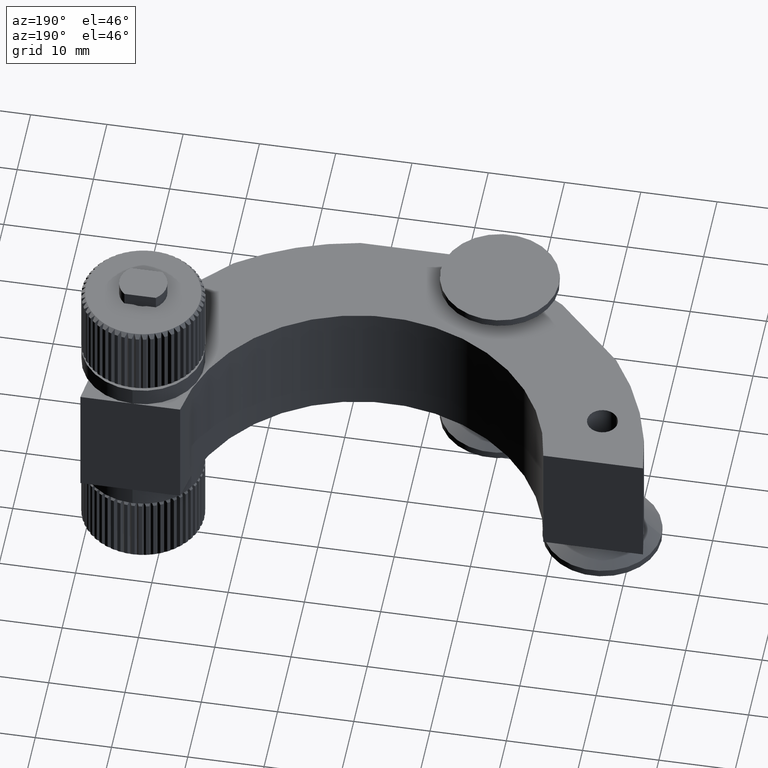
[diagram: clean part render]
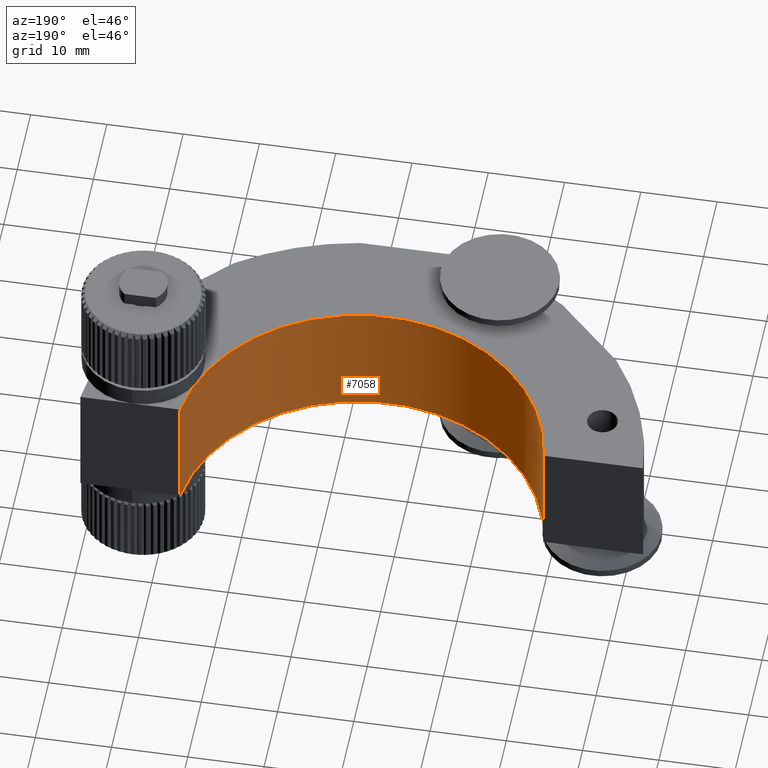
[diagram: same view with one face highlighted and labeled with its STEP entity id]
A machine part, auxiliary view. The second image highlights one B-rep face of the part: STEP entity #7058.
In plain terms, the highlighted cylindrical surface (partial cylindrical patch) has radius 24 mm, axis along (-0, -0, -1).
Its self-contained STEP definition (entity closure, byte-faithful):
#134 = ORIENTED_EDGE ( 'NONE', *, *, #10981, .T. ) ;
#1564 = LINE ( 'NONE', #3931, #11962 ) ;
#2597 = FACE_OUTER_BOUND ( 'NONE', #11239, .T. ) ;
#3108 = EDGE_CURVE ( 'NONE', #10675, #10620, #9642, .T. ) ;
#3931 = CARTESIAN_POINT ( 'NONE',  ( 26.49137508417133100, -1.101940590081930300, 8.000000000000000000 ) ) ;
#4330 = CYLINDRICAL_SURFACE ( 'NONE', #15704, 24.00000000000000400 ) ;
#5173 = ORIENTED_EDGE ( 'NONE', *, *, #14150, .F. ) ;
#5609 = ORIENTED_EDGE ( 'NONE', *, *, #13376, .T. ) ;
#6607 = CIRCLE ( 'NONE', #14437, 24.00000000000000400 ) ;
#7058 = ADVANCED_FACE ( 'NONE', ( #2597 ), #4330, .F. ) ;
#8048 = DIRECTION ( 'NONE',  ( 1.000000000000000000, 0.0000000000000000000, 0.0000000000000000000 ) ) ;
#8809 = DIRECTION ( 'NONE',  ( 1.000000000000000000, 0.0000000000000000000, 0.0000000000000000000 ) ) ;
#9625 = CARTESIAN_POINT ( 'NONE',  ( -21.13214851499131400, -1.101940590081921200, -8.000000000000000000 ) ) ;
#9642 = LINE ( 'NONE', #10321, #11378 ) ;
#10252 = CARTESIAN_POINT ( 'NONE',  ( -21.13214851499131400, -1.101940590081921200, 8.000000000000000000 ) ) ;
#10321 = CARTESIAN_POINT ( 'NONE',  ( -21.13214851499131400, -1.101940590081921200, 8.000000000000000000 ) ) ;
#10620 = VERTEX_POINT ( 'NONE', #9625 ) ;
#10661 = DIRECTION ( 'NONE',  ( -0.0000000000000000000, -0.0000000000000000000, -1.000000000000000000 ) ) ;
#10675 = VERTEX_POINT ( 'NONE', #10252 ) ;
#10793 = CARTESIAN_POINT ( 'NONE',  ( 26.49137508417133100, -1.101940590081930300, 8.000000000000000000 ) ) ;
#10911 = DIRECTION ( 'NONE',  ( -0.0000000000000000000, -0.0000000000000000000, -1.000000000000000000 ) ) ;
#10935 = CARTESIAN_POINT ( 'NONE',  ( 2.679613284590009600, 1.898059409918034800, -8.000000000000000000 ) ) ;
#10981 = EDGE_CURVE ( 'NONE', #15798, #10620, #6607, .T. ) ;
#11239 = EDGE_LOOP ( 'NONE', ( #134, #15062, #5173, #5609 ) ) ;
#11378 = VECTOR ( 'NONE', #13117, 1000.000000000000000 ) ;
#11721 = CARTESIAN_POINT ( 'NONE',  ( 2.679613284590009600, 1.898059409918034800, 8.000000000000000000 ) ) ;
#11940 = CARTESIAN_POINT ( 'NONE',  ( 26.49137508417133100, -1.101940590081930300, -8.000000000000000000 ) ) ;
#11962 = VECTOR ( 'NONE', #10911, 1000.000000000000000 ) ;
#11983 = DIRECTION ( 'NONE',  ( -1.000000000000000000, 0.0000000000000000000, 0.0000000000000000000 ) ) ;
#12103 = CARTESIAN_POINT ( 'NONE',  ( 2.679613284590009600, 1.898059409918034800, 8.000000000000000000 ) ) ;
#12697 = CIRCLE ( 'NONE', #14919, 24.00000000000000400 ) ;
#13117 = DIRECTION ( 'NONE',  ( -0.0000000000000000000, -0.0000000000000000000, -1.000000000000000000 ) ) ;
#13376 = EDGE_CURVE ( 'NONE', #17950, #15798, #1564, .T. ) ;
#13473 = DIRECTION ( 'NONE',  ( -0.0000000000000000000, -0.0000000000000000000, -1.000000000000000000 ) ) ;
#14150 = EDGE_CURVE ( 'NONE', #17950, #10675, #12697, .T. ) ;
#14437 = AXIS2_PLACEMENT_3D ( 'NONE', #10935, #13473, #8048 ) ;
#14919 = AXIS2_PLACEMENT_3D ( 'NONE', #11721, #15809, #8809 ) ;
#15062 = ORIENTED_EDGE ( 'NONE', *, *, #3108, .F. ) ;
#15704 = AXIS2_PLACEMENT_3D ( 'NONE', #12103, #10661, #11983 ) ;
#15798 = VERTEX_POINT ( 'NONE', #11940 ) ;
#15809 = DIRECTION ( 'NONE',  ( -0.0000000000000000000, -0.0000000000000000000, -1.000000000000000000 ) ) ;
#17950 = VERTEX_POINT ( 'NONE', #10793 ) ;